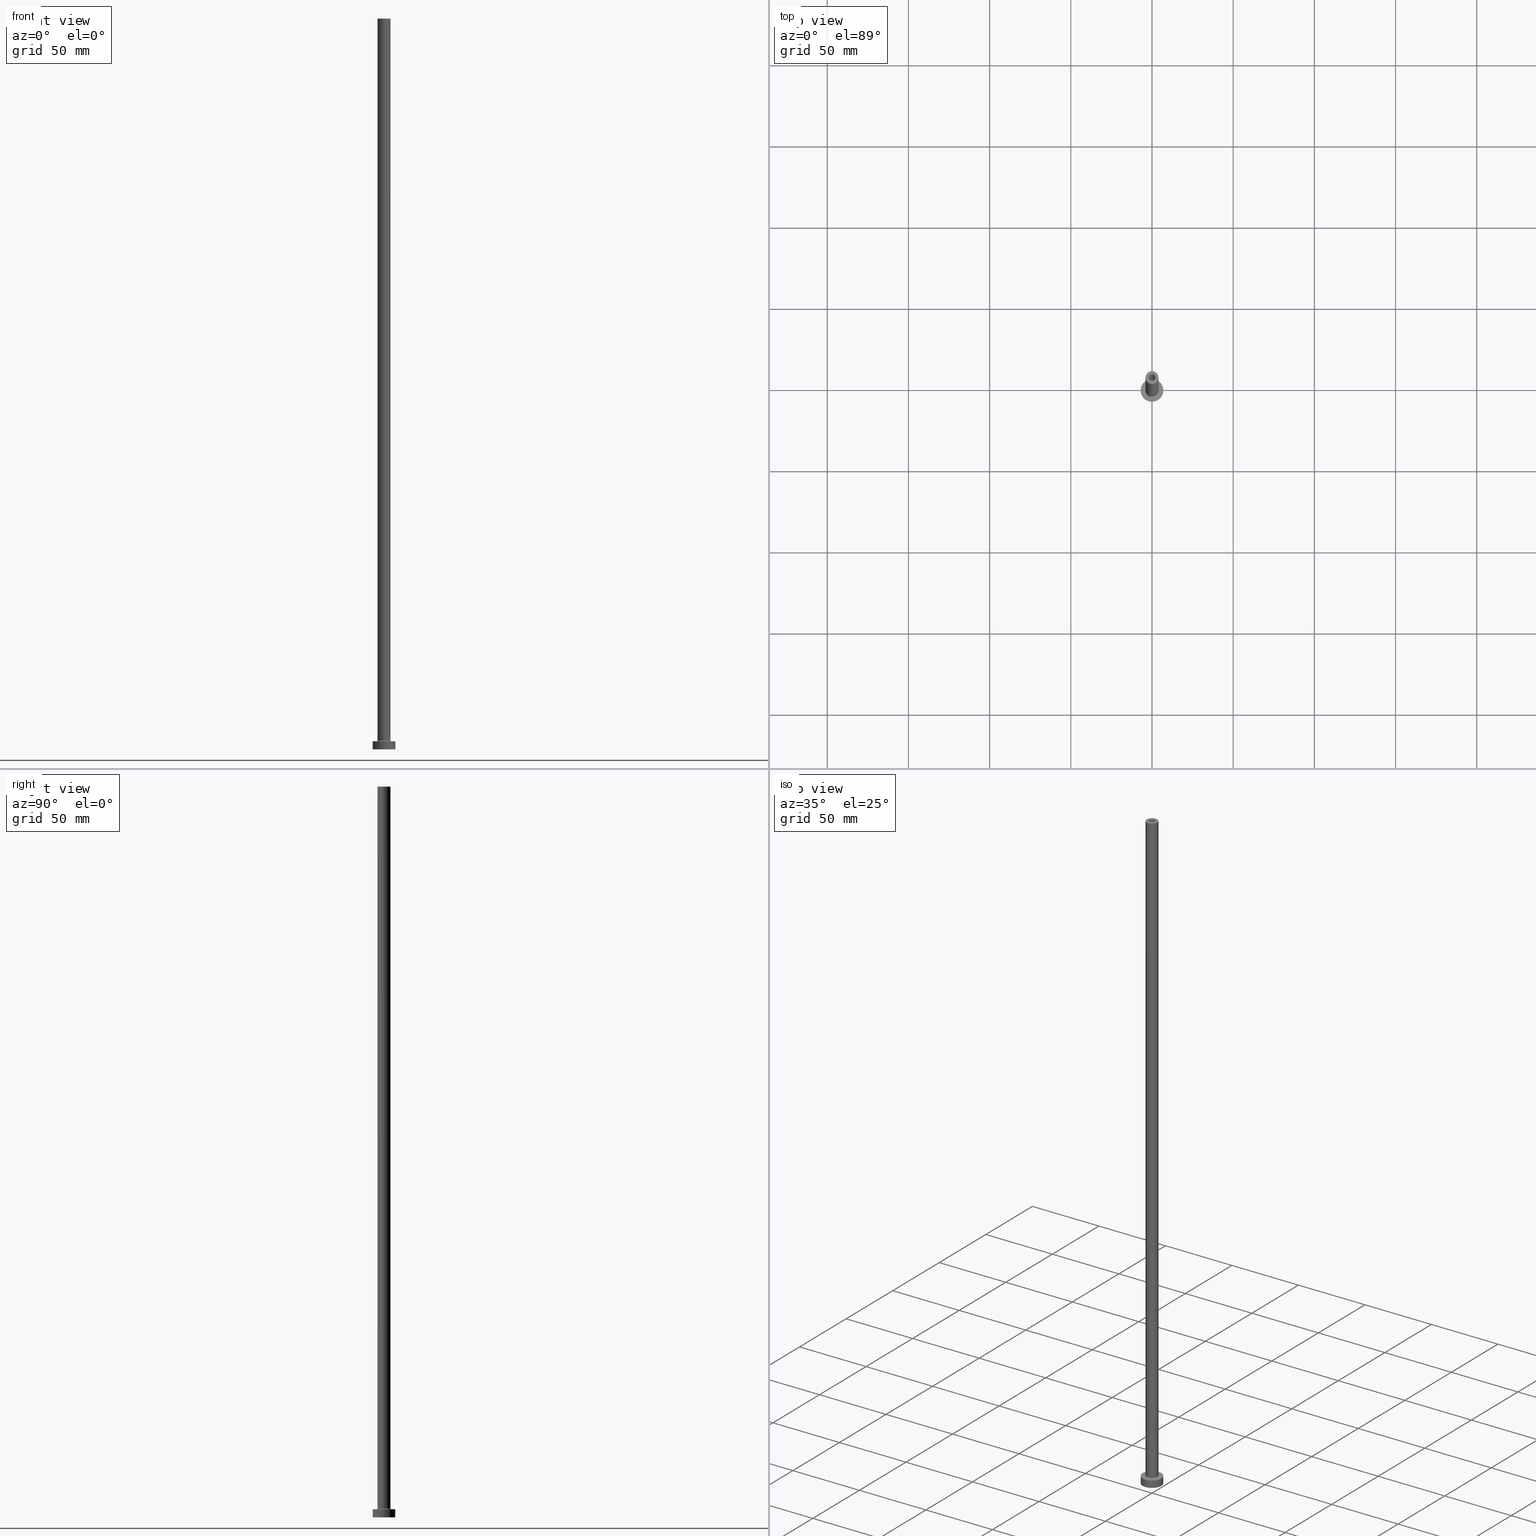
[diagram: canonical four-view strip — front | top / right | iso, engineering-drawing reading convention]
A machine part, canonical four-view strip (front | top / right | iso — engineering-drawing reading convention). The complete STEP part file that produces these views, byte-faithful:
ISO-10303-21;
HEADER;
FILE_DESCRIPTION (( 'STEP AP203' ),
    '1' );
FILE_NAME ('b4f0.STEP',
    '2023-02-13T17:37:16',
    ( '' ),
    ( '' ),
    'SwSTEP 2.0',
    'SolidWorks 2019',
    '' );
FILE_SCHEMA (( 'CONFIG_CONTROL_DESIGN' ));
ENDSEC;

DATA;
#1 = FACE_OUTER_BOUND ( 'NONE', #162, .T. ) ;
#2 = ORIENTED_EDGE ( 'NONE', *, *, #439, .T. ) ;
#3 = DIRECTION ( 'NONE',  ( 1.000000000000000000, 0.000000000000000000, -0.000000000000000000 ) ) ;
#4 = EDGE_LOOP ( 'NONE', ( #19, #74, #129, #197 ) ) ;
#5 = CC_DESIGN_PERSON_AND_ORGANIZATION_ASSIGNMENT ( #249, #31, ( #30 ) ) ;
#6 = CARTESIAN_POINT ( 'NONE',  ( 0.000000000000000000, 0.000000000000000000, 405.0000000000000000 ) ) ;
#7 = ORIENTED_EDGE ( 'NONE', *, *, #239, .T. ) ;
#8 = EDGE_CURVE ( 'NONE', #317, #195, #57, .T. ) ;
#9 = CYLINDRICAL_SURFACE ( 'NONE', #130, 7.000000000000000000 ) ;
#10 = ORIENTED_EDGE ( 'NONE', *, *, #310, .T. ) ;
#11 = APPLICATION_PROTOCOL_DEFINITION ( 'international standard', 'config_control_design', 1994, #156 ) ;
#12 = DIRECTION ( 'NONE',  ( -1.000000000000000000, 0.000000000000000000, 0.000000000000000000 ) ) ;
#13 = PERSON_AND_ORGANIZATION ( #289, #243 ) ;
#14 = EDGE_LOOP ( 'NONE', ( #448, #372, #41, #296 ) ) ;
#15 = VECTOR ( 'NONE', #349, 1000.000000000000000 ) ;
#16 = APPLICATION_PROTOCOL_DEFINITION ( 'international standard', 'config_control_design', 1994, #259 ) ;
#17 = DIRECTION ( 'NONE',  ( 0.000000000000000000, 0.000000000000000000, 1.000000000000000000 ) ) ;
#18 = CARTESIAN_POINT ( 'NONE',  ( 0.000000000000000000, 0.000000000000000000, 450.0000000000000000 ) ) ;
#19 = ORIENTED_EDGE ( 'NONE', *, *, #44, .F. ) ;
#20 = CYLINDRICAL_SURFACE ( 'NONE', #382, 4.000000000000000000 ) ;
#21 = VECTOR ( 'NONE', #135, 1000.000000000000000 ) ;
#22 = EDGE_CURVE ( 'NONE', #83, #406, #255, .T. ) ;
#23 = FACE_OUTER_BOUND ( 'NONE', #153, .T. ) ;
#24 = CIRCLE ( 'NONE', #169, 4.000000000000000000 ) ;
#25 = CALENDAR_DATE ( 2023, 13, 2 ) ;
#26 = CARTESIAN_POINT ( 'NONE',  ( -4.500000000000000888, 5.510910596163088569E-16, 5.000000000000002665 ) ) ;
#27 = FACE_OUTER_BOUND ( 'NONE', #159, .T. ) ;
#28 = ADVANCED_FACE ( 'NONE', ( #131 ), #20, .T. ) ;
#29 = CIRCLE ( 'NONE', #103, 4.000000000000000000 ) ;
#30 = PRODUCT_DEFINITION_FORMATION_WITH_SPECIFIED_SOURCE ( 'LIBOVOLN�', '', #313, .NOT_KNOWN. ) ;
#31 = PERSON_AND_ORGANIZATION_ROLE ( 'creator' ) ;
#32 = CYLINDRICAL_SURFACE ( 'NONE', #237, 2.149999999999999911 ) ;
#33 = AXIS2_PLACEMENT_3D ( 'NONE', #244, #381, #143 ) ;
#34 = CARTESIAN_POINT ( 'NONE',  ( 0.000000000000000000, 0.000000000000000000, 450.0000000000000000 ) ) ;
#35 = CARTESIAN_POINT ( 'NONE',  ( -2.000000000000000000, 0.000000000000000000, 450.0000000000000000 ) ) ;
#36 = ORIENTED_EDGE ( 'NONE', *, *, #297, .T. ) ;
#37 = EDGE_CURVE ( 'NONE', #240, #195, #275, .T. ) ;
#38 = CARTESIAN_POINT ( 'NONE',  ( 0.000000000000000000, 0.000000000000000000, 450.0000000000000000 ) ) ;
#39 = ORIENTED_EDGE ( 'NONE', *, *, #283, .F. ) ;
#40 = DIRECTION ( 'NONE',  ( 0.000000000000000000, 0.000000000000000000, 1.000000000000000000 ) ) ;
#41 = ORIENTED_EDGE ( 'NONE', *, *, #75, .T. ) ;
#42 = LINE ( 'NONE', #78, #302 ) ;
#43 = ORIENTED_EDGE ( 'NONE', *, *, #439, .F. ) ;
#44 = EDGE_CURVE ( 'NONE', #200, #442, #24, .T. ) ;
#45 = CARTESIAN_POINT ( 'NONE',  ( -4.500000000000000888, 5.510910596163089556E-16, 5.500000000000005329 ) ) ;
#46 = ORIENTED_EDGE ( 'NONE', *, *, #191, .T. ) ;
#47 = MECHANICAL_CONTEXT ( 'NONE', #156, 'mechanical' ) ;
#48 = ORIENTED_EDGE ( 'NONE', *, *, #452, .T. ) ;
#49 = TOROIDAL_SURFACE ( 'NONE', #94, 4.500000000000000888, 0.5000000000000000000 ) ;
#50 = DIRECTION ( 'NONE',  ( -0.000000000000000000, -0.000000000000000000, -1.000000000000000000 ) ) ;
#51 = CARTESIAN_POINT ( 'NONE',  ( 0.000000000000000000, 0.000000000000000000, 0.000000000000000000 ) ) ;
#52 = PERSON_AND_ORGANIZATION ( #289, #243 ) ;
#53 = DIRECTION ( 'NONE',  ( 0.000000000000000000, 0.000000000000000000, -1.000000000000000000 ) ) ;
#54 = TOROIDAL_SURFACE ( 'NONE', #294, 4.500000000000000888, 0.5000000000000000000 ) ;
#55 = PERSON_AND_ORGANIZATION ( #289, #243 ) ;
#56 = ORIENTED_EDGE ( 'NONE', *, *, #396, .T. ) ;
#57 = CIRCLE ( 'NONE', #218, 2.149999999999999911 ) ;
#58 = DIRECTION ( 'NONE',  ( 1.000000000000000000, 0.000000000000000000, 0.000000000000000000 ) ) ;
#59 = ORIENTED_EDGE ( 'NONE', *, *, #8, .F. ) ;
#60 = ADVANCED_FACE ( 'NONE', ( #238, #165 ), #206, .F. ) ;
#61 = DIRECTION ( 'NONE',  ( 1.000000000000000000, 0.000000000000000000, 0.000000000000000000 ) ) ;
#62 = CIRCLE ( 'NONE', #252, 2.149999999999999911 ) ;
#63 = PERSON_AND_ORGANIZATION ( #289, #243 ) ;
#64 = ADVANCED_FACE ( 'NONE', ( #447 ), #415, .T. ) ;
#65 = CARTESIAN_POINT ( 'NONE',  ( 2.000000000000000000, 2.449293598294705921E-16, 450.0000000000000000 ) ) ;
#66 = PERSON_AND_ORGANIZATION ( #289, #243 ) ;
#67 = EDGE_CURVE ( 'NONE', #442, #440, #180, .T. ) ;
#68 = PLANE ( 'NONE',  #386 ) ;
#69 = EDGE_CURVE ( 'NONE', #434, #272, #427, .T. ) ;
#70 = CARTESIAN_POINT ( 'NONE',  ( -4.000000000000000000, 0.000000000000000000, 450.0000000000000000 ) ) ;
#71 = CC_DESIGN_APPROVAL ( #229, ( #348 ) ) ;
#72 = CARTESIAN_POINT ( 'NONE',  ( 0.000000000000000000, 0.000000000000000000, 450.0000000000000000 ) ) ;
#73 = CARTESIAN_POINT ( 'NONE',  ( 2.000000000000000000, 2.449293598294705921E-16, 405.0000000000000000 ) ) ;
#74 = ORIENTED_EDGE ( 'NONE', *, *, #198, .T. ) ;
#75 = EDGE_CURVE ( 'NONE', #234, #232, #199, .T. ) ;
#76 = CARTESIAN_POINT ( 'NONE',  ( 0.000000000000000000, 0.000000000000000000, 5.500000000000005329 ) ) ;
#77 = ORIENTED_EDGE ( 'NONE', *, *, #161, .T. ) ;
#78 = CARTESIAN_POINT ( 'NONE',  ( -7.000000000000000000, 0.000000000000000000, 5.000000000000000000 ) ) ;
#79 = DIRECTION ( 'NONE',  ( 0.000000000000000000, 0.000000000000000000, 1.000000000000000000 ) ) ;
#80 = ADVANCED_FACE ( 'NONE', ( #27 ), #32, .F. ) ;
#81 = ORIENTED_EDGE ( 'NONE', *, *, #339, .T. ) ;
#82 = DIRECTION ( 'NONE',  ( 1.000000000000000000, 0.000000000000000000, -0.000000000000000000 ) ) ;
#83 = VERTEX_POINT ( 'NONE', #325 ) ;
#84 =( NAMED_UNIT ( * ) PLANE_ANGLE_UNIT ( ) SI_UNIT ( $, .RADIAN. ) );
#85 = DIRECTION ( 'NONE',  ( 1.000000000000000000, 0.000000000000000000, 0.000000000000000000 ) ) ;
#86 = CC_DESIGN_APPROVAL ( #170, ( #181 ) ) ;
#87 = APPROVAL_ROLE ( '' ) ;
#88 = EDGE_LOOP ( 'NONE', ( #281, #346 ) ) ;
#89 = ADVANCED_FACE ( 'NONE', ( #111 ), #49, .F. ) ;
#90 = APPROVAL_STATUS ( 'not_yet_approved' ) ;
#91 = ORIENTED_EDGE ( 'NONE', *, *, #22, .F. ) ;
#92 = COORDINATED_UNIVERSAL_TIME_OFFSET ( 1, 0, .AHEAD. ) ;
#93 = CARTESIAN_POINT ( 'NONE',  ( 0.000000000000000000, 0.000000000000000000, 450.0000000000000000 ) ) ;
#94 = AXIS2_PLACEMENT_3D ( 'NONE', #142, #322, #217 ) ;
#95 = AXIS2_PLACEMENT_3D ( 'NONE', #148, #397, #428 ) ;
#96 = DIRECTION ( 'NONE',  ( 0.000000000000000000, 0.000000000000000000, 1.000000000000000000 ) ) ;
#97 = ORIENTED_EDGE ( 'NONE', *, *, #115, .F. ) ;
#98 = ADVANCED_FACE ( 'NONE', ( #23 ), #459, .F. ) ;
#99 = COORDINATED_UNIVERSAL_TIME_OFFSET ( 1, 0, .AHEAD. ) ;
#100 = CARTESIAN_POINT ( 'NONE',  ( 0.000000000000000000, 0.000000000000000000, 450.0000000000000000 ) ) ;
#101 = CARTESIAN_POINT ( 'NONE',  ( 4.500000000000000888, 0.000000000000000000, 5.500000000000005329 ) ) ;
#102 = CIRCLE ( 'NONE', #127, 2.000000000000000000 ) ;
#103 = AXIS2_PLACEMENT_3D ( 'NONE', #34, #139, #185 ) ;
#104 = CC_DESIGN_SECURITY_CLASSIFICATION ( #348, ( #30 ) ) ;
#105 = EDGE_CURVE ( 'NONE', #195, #317, #140, .T. ) ;
#106 = APPROVAL_ROLE ( '' ) ;
#107 = CARTESIAN_POINT ( 'NONE',  ( 4.000000000000000000, 4.898587196589412829E-16, 450.0000000000000000 ) ) ;
#108 = SECURITY_CLASSIFICATION_LEVEL ( 'unclassified' ) ;
#109 = CARTESIAN_POINT ( 'NONE',  ( 0.000000000000000000, 0.000000000000000000, 0.000000000000000000 ) ) ;
#110 = DATE_AND_TIME ( #455, #214 ) ;
#111 = FACE_OUTER_BOUND ( 'NONE', #14, .T. ) ;
#112 = AXIS2_PLACEMENT_3D ( 'NONE', #72, #451, #319 ) ;
#113 = FACE_BOUND ( 'NONE', #333, .T. ) ;
#114 = CC_DESIGN_DATE_AND_TIME_ASSIGNMENT ( #446, #311, ( #181 ) ) ;
#115 = EDGE_CURVE ( 'NONE', #334, #272, #347, .T. ) ;
#116 = FACE_OUTER_BOUND ( 'NONE', #450, .T. ) ;
#117 = VERTEX_POINT ( 'NONE', #26 ) ;
#118 = CARTESIAN_POINT ( 'NONE',  ( -2.000000000000000000, 0.000000000000000000, 405.0000000000000000 ) ) ;
#119 = EDGE_LOOP ( 'NONE', ( #417, #384 ) ) ;
#120 = CIRCLE ( 'NONE', #378, 2.149999999999999911 ) ;
#121 = DIRECTION ( 'NONE',  ( 1.000000000000000000, 0.000000000000000000, 0.000000000000000000 ) ) ;
#122 = CYLINDRICAL_SURFACE ( 'NONE', #147, 2.000000000000000000 ) ;
#123 = ORIENTED_EDGE ( 'NONE', *, *, #67, .T. ) ;
#124 = CC_DESIGN_PERSON_AND_ORGANIZATION_ASSIGNMENT ( #320, #179, ( #30 ) ) ;
#125 = ORIENTED_EDGE ( 'NONE', *, *, #8, .T. ) ;
#126 = CARTESIAN_POINT ( 'NONE',  ( 0.000000000000000000, 0.000000000000000000, 5.000000000000000000 ) ) ;
#127 = AXIS2_PLACEMENT_3D ( 'NONE', #100, #287, #61 ) ;
#128 = CC_DESIGN_DATE_AND_TIME_ASSIGNMENT ( #110, #173, ( #348 ) ) ;
#129 = ORIENTED_EDGE ( 'NONE', *, *, #257, .T. ) ;
#130 = AXIS2_PLACEMENT_3D ( 'NONE', #132, #50, #273 ) ;
#131 = FACE_OUTER_BOUND ( 'NONE', #149, .T. ) ;
#132 = CARTESIAN_POINT ( 'NONE',  ( 0.000000000000000000, 0.000000000000000000, 5.000000000000000000 ) ) ;
#133 = DIRECTION ( 'NONE',  ( 1.000000000000000000, 0.000000000000000000, 0.000000000000000000 ) ) ;
#134 = EDGE_CURVE ( 'NONE', #304, #434, #146, .T. ) ;
#135 = DIRECTION ( 'NONE',  ( -0.000000000000000000, -0.000000000000000000, -1.000000000000000000 ) ) ;
#136 = ORIENTED_EDGE ( 'NONE', *, *, #105, .F. ) ;
#137 = DIRECTION ( 'NONE',  ( -0.000000000000000000, -0.000000000000000000, -1.000000000000000000 ) ) ;
#138 = CARTESIAN_POINT ( 'NONE',  ( -2.000000000000000000, 0.000000000000000000, 450.0000000000000000 ) ) ;
#139 = DIRECTION ( 'NONE',  ( 0.000000000000000000, 0.000000000000000000, 1.000000000000000000 ) ) ;
#140 = CIRCLE ( 'NONE', #241, 2.149999999999999911 ) ;
#141 = CALENDAR_DATE ( 2023, 13, 2 ) ;
#142 = CARTESIAN_POINT ( 'NONE',  ( 0.000000000000000000, 0.000000000000000000, 5.500000000000005329 ) ) ;
#143 = DIRECTION ( 'NONE',  ( -1.000000000000000000, 0.000000000000000000, 0.000000000000000000 ) ) ;
#144 = EDGE_CURVE ( 'NONE', #232, #117, #370, .T. ) ;
#145 = CARTESIAN_POINT ( 'NONE',  ( -2.149999999999999911, 0.000000000000000000, 405.0000000000000000 ) ) ;
#146 = CIRCLE ( 'NONE', #112, 2.000000000000000000 ) ;
#147 = AXIS2_PLACEMENT_3D ( 'NONE', #187, #404, #269 ) ;
#148 = CARTESIAN_POINT ( 'NONE',  ( 0.000000000000000000, 0.000000000000000000, 5.000000000000000000 ) ) ;
#149 = EDGE_LOOP ( 'NONE', ( #209, #277, #123, #157 ) ) ;
#150 = DIRECTION ( 'NONE',  ( 1.000000000000000000, 0.000000000000000000, 0.000000000000000000 ) ) ;
#151 = EDGE_LOOP ( 'NONE', ( #300, #81, #403, #395 ) ) ;
#152 = CARTESIAN_POINT ( 'NONE',  ( -7.000000000000000000, 0.000000000000000000, 5.000000000000000000 ) ) ;
#153 = EDGE_LOOP ( 'NONE', ( #274, #10, #364, #125 ) ) ;
#154 = VECTOR ( 'NONE', #332, 1000.000000000000000 ) ;
#155 = PLANE ( 'NONE',  #189 ) ;
#156 = APPLICATION_CONTEXT ( 'configuration controlled 3d designs of mechanical parts and assemblies' ) ;
#157 = ORIENTED_EDGE ( 'NONE', *, *, #247, .T. ) ;
#158 =( NAMED_UNIT ( * ) SI_UNIT ( $, .STERADIAN. ) SOLID_ANGLE_UNIT ( ) );
#159 = EDGE_LOOP ( 'NONE', ( #358, #266, #168, #39 ) ) ;
#160 = FACE_OUTER_BOUND ( 'NONE', #361, .T. ) ;
#161 = EDGE_CURVE ( 'NONE', #442, #200, #29, .T. ) ;
#162 = EDGE_LOOP ( 'NONE', ( #315, #46, #174, #369 ) ) ;
#163 = PERSON_AND_ORGANIZATION_ROLE ( 'creator' ) ;
#164 = APPROVAL_PERSON_ORGANIZATION ( #55, #268, #106 ) ;
#165 = FACE_OUTER_BOUND ( 'NONE', #306, .T. ) ;
#166 = CIRCLE ( 'NONE', #288, 0.5000000000000004441 ) ;
#167 = CALENDAR_DATE ( 2023, 13, 2 ) ;
#168 = ORIENTED_EDGE ( 'NONE', *, *, #105, .T. ) ;
#169 = AXIS2_PLACEMENT_3D ( 'NONE', #278, #410, #202 ) ;
#170 = APPROVAL ( #90, 'NEUR�EN�' ) ;
#171 = CARTESIAN_POINT ( 'NONE',  ( -4.000000000000000000, 0.000000000000000000, 450.0000000000000000 ) ) ;
#172 = EDGE_LOOP ( 'NONE', ( #77, #338 ) ) ;
#173 = DATE_TIME_ROLE ( 'classification_date' ) ;
#174 = ORIENTED_EDGE ( 'NONE', *, *, #215, .T. ) ;
#175 = CC_DESIGN_PERSON_AND_ORGANIZATION_ASSIGNMENT ( #66, #256, ( #348 ) ) ;
#176 = DATE_AND_TIME ( #141, #454 ) ;
#177 = DIRECTION ( 'NONE',  ( 0.000000000000000000, 0.000000000000000000, 1.000000000000000000 ) ) ;
#178 = VECTOR ( 'NONE', #53, 1000.000000000000000 ) ;
#179 = PERSON_AND_ORGANIZATION_ROLE ( 'design_supplier' ) ;
#180 = LINE ( 'NONE', #70, #438 ) ;
#181 = PRODUCT_DEFINITION ( 'NEZN�M�', '', #30, #365 ) ;
#182 = DIRECTION ( 'NONE',  ( -1.000000000000000000, 0.000000000000000000, 0.000000000000000000 ) ) ;
#183 = AXIS2_PLACEMENT_3D ( 'NONE', #126, #383, #279 ) ;
#184 = CARTESIAN_POINT ( 'NONE',  ( 0.000000000000000000, 0.000000000000000000, 411.0811183182044033 ) ) ;
#185 = DIRECTION ( 'NONE',  ( 1.000000000000000000, 0.000000000000000000, 0.000000000000000000 ) ) ;
#186 = ADVANCED_BREP_SHAPE_REPRESENTATION ( 'b4f0', ( #248, #435 ), #280 ) ;
#187 = CARTESIAN_POINT ( 'NONE',  ( 0.000000000000000000, 0.000000000000000000, 450.0000000000000000 ) ) ;
#188 = EDGE_LOOP ( 'NONE', ( #43, #431, #56, #7 ) ) ;
#189 = AXIS2_PLACEMENT_3D ( 'NONE', #38, #196, #82 ) ;
#190 = DIRECTION ( 'NONE',  ( -0.000000000000000000, -0.000000000000000000, -1.000000000000000000 ) ) ;
#191 = EDGE_CURVE ( 'NONE', #434, #304, #102, .T. ) ;
#192 = ORIENTED_EDGE ( 'NONE', *, *, #144, .T. ) ;
#193 = DIRECTION ( 'NONE',  ( -1.000000000000000000, 1.224646799147351482E-16, 0.000000000000000000 ) ) ;
#194 = FACE_OUTER_BOUND ( 'NONE', #119, .T. ) ;
#195 = VERTEX_POINT ( 'NONE', #212 ) ;
#196 = DIRECTION ( 'NONE',  ( 0.000000000000000000, 0.000000000000000000, 1.000000000000000000 ) ) ;
#197 = ORIENTED_EDGE ( 'NONE', *, *, #67, .F. ) ;
#198 = EDGE_CURVE ( 'NONE', #200, #234, #424, .T. ) ;
#199 = CIRCLE ( 'NONE', #305, 0.5000000000000004441 ) ;
#200 = VERTEX_POINT ( 'NONE', #254 ) ;
#201 = CARTESIAN_POINT ( 'NONE',  ( 0.000000000000000000, 0.000000000000000000, 405.0000000000000000 ) ) ;
#202 = DIRECTION ( 'NONE',  ( 1.000000000000000000, 0.000000000000000000, 0.000000000000000000 ) ) ;
#203 = UNCERTAINTY_MEASURE_WITH_UNIT (LENGTH_MEASURE( 1.000000000000000082E-05 ), #414, 'distance_accuracy_value', 'NONE');
#204 = CIRCLE ( 'NONE', #267, 7.000000000000000000 ) ;
#205 = APPROVAL_PERSON_ORGANIZATION ( #444, #170, #87 ) ;
#206 = PLANE ( 'NONE',  #393 ) ;
#207 = ADVANCED_FACE ( 'NONE', ( #353, #388 ), #68, .T. ) ;
#208 = APPROVAL_STATUS ( 'not_yet_approved' ) ;
#209 = ORIENTED_EDGE ( 'NONE', *, *, #198, .F. ) ;
#210 = ORIENTED_EDGE ( 'NONE', *, *, #396, .F. ) ;
#211 = DATE_AND_TIME ( #25, #222 ) ;
#212 = CARTESIAN_POINT ( 'NONE',  ( 2.149999999999999911, 2.632990618166809235E-16, 0.000000000000000000 ) ) ;
#213 = CIRCLE ( 'NONE', #398, 4.000000000000000000 ) ;
#214 = LOCAL_TIME ( 18, 37, 16.00000000000000000, #253 ) ;
#215 = EDGE_CURVE ( 'NONE', #304, #334, #426, .T. ) ;
#216 = COORDINATED_UNIVERSAL_TIME_OFFSET ( 1, 0, .AHEAD. ) ;
#217 = DIRECTION ( 'NONE',  ( 1.000000000000000000, 0.000000000000000000, 0.000000000000000000 ) ) ;
#218 = AXIS2_PLACEMENT_3D ( 'NONE', #51, #137, #85 ) ;
#219 = CARTESIAN_POINT ( 'NONE',  ( 0.000000000000000000, 0.000000000000000000, 5.000000000000000000 ) ) ;
#220 = APPROVAL_STATUS ( 'not_yet_approved' ) ;
#221 = DIRECTION ( 'NONE',  ( 0.000000000000000000, 0.000000000000000000, -1.000000000000000000 ) ) ;
#222 = LOCAL_TIME ( 18, 37, 16.00000000000000000, #216 ) ;
#223 = DIRECTION ( 'NONE',  ( -1.000000000000000000, 0.000000000000000000, 0.000000000000000000 ) ) ;
#224 = DIRECTION ( 'NONE',  ( 1.000000000000000000, 0.000000000000000000, 0.000000000000000000 ) ) ;
#225 = EDGE_LOOP ( 'NONE', ( #263, #412 ) ) ;
#226 = FACE_OUTER_BOUND ( 'NONE', #172, .T. ) ;
#227 = ORIENTED_EDGE ( 'NONE', *, *, #297, .F. ) ;
#228 = APPROVAL_PERSON_ORGANIZATION ( #63, #229, #286 ) ;
#229 = APPROVAL ( #220, 'NEUR�EN�' ) ;
#230 = DIRECTION ( 'NONE',  ( 0.000000000000000000, 0.000000000000000000, 1.000000000000000000 ) ) ;
#231 = CARTESIAN_POINT ( 'NONE',  ( 0.000000000000000000, 0.000000000000000000, 5.500000000000005329 ) ) ;
#232 = VERTEX_POINT ( 'NONE', #285 ) ;
#233 = DIRECTION ( 'NONE',  ( 0.000000000000000000, 0.000000000000000000, 1.000000000000000000 ) ) ;
#234 = VERTEX_POINT ( 'NONE', #419 ) ;
#235 = CARTESIAN_POINT ( 'NONE',  ( 0.000000000000000000, 0.000000000000000000, 5.000000000000000000 ) ) ;
#236 = DATE_AND_TIME ( #242, #379 ) ;
#237 = AXIS2_PLACEMENT_3D ( 'NONE', #456, #292, #182 ) ;
#238 = FACE_BOUND ( 'NONE', #336, .T. ) ;
#239 = EDGE_CURVE ( 'NONE', #375, #270, #251, .T. ) ;
#240 = VERTEX_POINT ( 'NONE', #394 ) ;
#241 = AXIS2_PLACEMENT_3D ( 'NONE', #323, #385, #246 ) ;
#242 = CALENDAR_DATE ( 2023, 13, 2 ) ;
#243 = ORGANIZATION ( 'NEUR�EN�', 'NEUR�EN�', '' ) ;
#244 = CARTESIAN_POINT ( 'NONE',  ( 0.000000000000000000, 0.000000000000000000, 450.0000000000000000 ) ) ;
#245 = DIRECTION ( 'NONE',  ( 0.000000000000000000, 0.000000000000000000, 1.000000000000000000 ) ) ;
#246 = DIRECTION ( 'NONE',  ( 1.000000000000000000, 0.000000000000000000, 0.000000000000000000 ) ) ;
#247 = EDGE_CURVE ( 'NONE', #440, #234, #213, .T. ) ;
#248 = MANIFOLD_SOLID_BREP ( 'Odebrat vysunut�m4', #458 ) ;
#249 = PERSON_AND_ORGANIZATION ( #289, #243 ) ;
#250 = DIRECTION ( 'NONE',  ( 0.000000000000000000, 0.000000000000000000, -1.000000000000000000 ) ) ;
#251 = CIRCLE ( 'NONE', #362, 7.000000000000000000 ) ;
#252 = AXIS2_PLACEMENT_3D ( 'NONE', #6, #79, #261 ) ;
#253 = COORDINATED_UNIVERSAL_TIME_OFFSET ( 1, 0, .AHEAD. ) ;
#254 = CARTESIAN_POINT ( 'NONE',  ( 4.000000000000000000, 4.898587196589412829E-16, 450.0000000000000000 ) ) ;
#255 = CIRCLE ( 'NONE', #324, 7.000000000000000000 ) ;
#256 = PERSON_AND_ORGANIZATION_ROLE ( 'classification_officer' ) ;
#257 = EDGE_CURVE ( 'NONE', #234, #440, #301, .T. ) ;
#258 = DIRECTION ( 'NONE',  ( 0.000000000000000000, 0.000000000000000000, 1.000000000000000000 ) ) ;
#259 = APPLICATION_CONTEXT ( 'configuration controlled 3d designs of mechanical parts and assemblies' ) ;
#260 = DIRECTION ( 'NONE',  ( 0.000000000000000000, 0.000000000000000000, 1.000000000000000000 ) ) ;
#261 = DIRECTION ( 'NONE',  ( 1.000000000000000000, 0.000000000000000000, 0.000000000000000000 ) ) ;
#262 = DIRECTION ( 'NONE',  ( 1.224646799147353207E-16, 1.000000000000000000, -0.000000000000000000 ) ) ;
#263 = ORIENTED_EDGE ( 'NONE', *, *, #391, .T. ) ;
#264 = CC_DESIGN_PERSON_AND_ORGANIZATION_ASSIGNMENT ( #52, #337, ( #313 ) ) ;
#265 = FACE_BOUND ( 'NONE', #88, .T. ) ;
#266 = ORIENTED_EDGE ( 'NONE', *, *, #37, .T. ) ;
#267 = AXIS2_PLACEMENT_3D ( 'NONE', #357, #233, #150 ) ;
#268 = APPROVAL ( #208, 'NEUR�EN�' ) ;
#269 = DIRECTION ( 'NONE',  ( -1.000000000000000000, 0.000000000000000000, 0.000000000000000000 ) ) ;
#270 = VERTEX_POINT ( 'NONE', #401 ) ;
#271 = DIRECTION ( 'NONE',  ( 0.000000000000000000, 0.000000000000000000, 1.000000000000000000 ) ) ;
#272 = VERTEX_POINT ( 'NONE', #73 ) ;
#273 = DIRECTION ( 'NONE',  ( -1.000000000000000000, 0.000000000000000000, 0.000000000000000000 ) ) ;
#274 = ORIENTED_EDGE ( 'NONE', *, *, #37, .F. ) ;
#275 = LINE ( 'NONE', #377, #178 ) ;
#276 = COORDINATED_UNIVERSAL_TIME_OFFSET ( 1, 0, .AHEAD. ) ;
#277 = ORIENTED_EDGE ( 'NONE', *, *, #161, .F. ) ;
#278 = CARTESIAN_POINT ( 'NONE',  ( 0.000000000000000000, 0.000000000000000000, 450.0000000000000000 ) ) ;
#279 = DIRECTION ( 'NONE',  ( -1.000000000000000000, 0.000000000000000000, 0.000000000000000000 ) ) ;
#280 =( GEOMETRIC_REPRESENTATION_CONTEXT ( 3 ) GLOBAL_UNCERTAINTY_ASSIGNED_CONTEXT ( ( #203 ) ) GLOBAL_UNIT_ASSIGNED_CONTEXT ( ( #414, #84, #158 ) ) REPRESENTATION_CONTEXT ( 'NONE', 'WORKASPACE' ) );
#281 = ORIENTED_EDGE ( 'NONE', *, *, #134, .F. ) ;
#282 = DIRECTION ( 'NONE',  ( 1.000000000000000000, 0.000000000000000000, 0.000000000000000000 ) ) ;
#283 = EDGE_CURVE ( 'NONE', #345, #317, #335, .T. ) ;
#284 = APPROVAL_DATE_TIME ( #211, #268 ) ;
#285 = CARTESIAN_POINT ( 'NONE',  ( 4.500000000000000888, 0.000000000000000000, 5.000000000000002665 ) ) ;
#286 = APPROVAL_ROLE ( '' ) ;
#287 = DIRECTION ( 'NONE',  ( 0.000000000000000000, 0.000000000000000000, 1.000000000000000000 ) ) ;
#288 = AXIS2_PLACEMENT_3D ( 'NONE', #45, #262, #193 ) ;
#289 = PERSON ( 'NEUR�EN�', 'NEUR�EN�', 'NEUR�EN�', ('NEUR�EN�'), ('NEUR�EN�'), ('NEUR�EN�') ) ;
#290 = EDGE_CURVE ( 'NONE', #117, #232, #449, .T. ) ;
#291 = DIRECTION ( 'NONE',  ( 0.000000000000000000, 0.000000000000000000, -1.000000000000000000 ) ) ;
#292 = DIRECTION ( 'NONE',  ( 0.000000000000000000, 0.000000000000000000, -1.000000000000000000 ) ) ;
#293 = CARTESIAN_POINT ( 'NONE',  ( -7.000000000000000000, 0.000000000000000000, 0.000000000000000000 ) ) ;
#294 = AXIS2_PLACEMENT_3D ( 'NONE', #368, #298, #432 ) ;
#295 = CARTESIAN_POINT ( 'NONE',  ( 0.000000000000000000, 0.000000000000000000, 405.0000000000000000 ) ) ;
#296 = ORIENTED_EDGE ( 'NONE', *, *, #290, .F. ) ;
#297 = EDGE_CURVE ( 'NONE', #270, #375, #204, .T. ) ;
#298 = DIRECTION ( 'NONE',  ( 0.000000000000000000, 0.000000000000000000, 1.000000000000000000 ) ) ;
#299 = CARTESIAN_POINT ( 'NONE',  ( -2.149999999999999911, 0.000000000000000000, 411.0811183182044033 ) ) ;
#300 = ORIENTED_EDGE ( 'NONE', *, *, #247, .F. ) ;
#301 = CIRCLE ( 'NONE', #360, 4.000000000000000000 ) ;
#302 = VECTOR ( 'NONE', #190, 1000.000000000000000 ) ;
#303 = CARTESIAN_POINT ( 'NONE',  ( 0.000000000000000000, 0.000000000000000000, 405.0000000000000000 ) ) ;
#304 = VERTEX_POINT ( 'NONE', #35 ) ;
#305 = AXIS2_PLACEMENT_3D ( 'NONE', #101, #387, #221 ) ;
#306 = EDGE_LOOP ( 'NONE', ( #331, #227 ) ) ;
#307 = CARTESIAN_POINT ( 'NONE',  ( 2.000000000000000000, 2.449293598294705921E-16, 450.0000000000000000 ) ) ;
#308 = ORIENTED_EDGE ( 'NONE', *, *, #69, .T. ) ;
#309 = ORIENTED_EDGE ( 'NONE', *, *, #134, .T. ) ;
#310 = EDGE_CURVE ( 'NONE', #240, #345, #120, .T. ) ;
#311 = DATE_TIME_ROLE ( 'creation_date' ) ;
#312 = DIRECTION ( 'NONE',  ( 1.000000000000000000, 0.000000000000000000, -0.000000000000000000 ) ) ;
#313 = PRODUCT ( 'b4f0', 'b4f0', '', ( #47 ) ) ;
#314 = DIRECTION ( 'NONE',  ( -1.000000000000000000, 0.000000000000000000, 0.000000000000000000 ) ) ;
#315 = ORIENTED_EDGE ( 'NONE', *, *, #69, .F. ) ;
#316 = ADVANCED_FACE ( 'NONE', ( #1 ), #122, .F. ) ;
#317 = VERTEX_POINT ( 'NONE', #327 ) ;
#318 = DIRECTION ( 'NONE',  ( 1.000000000000000000, 0.000000000000000000, -0.000000000000000000 ) ) ;
#319 = DIRECTION ( 'NONE',  ( 1.000000000000000000, 0.000000000000000000, 0.000000000000000000 ) ) ;
#320 = PERSON_AND_ORGANIZATION ( #289, #243 ) ;
#321 = AXIS2_PLACEMENT_3D ( 'NONE', #457, #260, #418 ) ;
#322 = DIRECTION ( 'NONE',  ( 0.000000000000000000, 0.000000000000000000, 1.000000000000000000 ) ) ;
#323 = CARTESIAN_POINT ( 'NONE',  ( 0.000000000000000000, 0.000000000000000000, 0.000000000000000000 ) ) ;
#324 = AXIS2_PLACEMENT_3D ( 'NONE', #235, #245, #133 ) ;
#325 = CARTESIAN_POINT ( 'NONE',  ( 7.000000000000000000, 8.572527594031473190E-16, 5.000000000000000000 ) ) ;
#326 = ADVANCED_FACE ( 'NONE', ( #460 ), #54, .F. ) ;
#327 = CARTESIAN_POINT ( 'NONE',  ( -2.149999999999999911, 0.000000000000000000, 0.000000000000000000 ) ) ;
#328 = AXIS2_PLACEMENT_3D ( 'NONE', #184, #291, #223 ) ;
#329 = AXIS2_PLACEMENT_3D ( 'NONE', #295, #430, #3 ) ;
#330 = DIRECTION ( 'NONE',  ( 1.000000000000000000, 0.000000000000000000, 0.000000000000000000 ) ) ;
#331 = ORIENTED_EDGE ( 'NONE', *, *, #239, .F. ) ;
#332 = DIRECTION ( 'NONE',  ( 0.000000000000000000, 0.000000000000000000, -1.000000000000000000 ) ) ;
#333 = EDGE_LOOP ( 'NONE', ( #399, #48 ) ) ;
#334 = VERTEX_POINT ( 'NONE', #118 ) ;
#335 = LINE ( 'NONE', #299, #154 ) ;
#336 = EDGE_LOOP ( 'NONE', ( #59, #136 ) ) ;
#337 = PERSON_AND_ORGANIZATION_ROLE ( 'design_owner' ) ;
#338 = ORIENTED_EDGE ( 'NONE', *, *, #44, .T. ) ;
#339 = EDGE_CURVE ( 'NONE', #440, #117, #166, .T. ) ;
#340 = ORIENTED_EDGE ( 'NONE', *, *, #215, .F. ) ;
#341 = VECTOR ( 'NONE', #250, 1000.000000000000000 ) ;
#342 = CARTESIAN_POINT ( 'NONE',  ( 0.000000000000000000, 0.000000000000000000, 0.000000000000000000 ) ) ;
#343 = CARTESIAN_POINT ( 'NONE',  ( 0.000000000000000000, 0.000000000000000000, 0.000000000000000000 ) ) ;
#344 = CARTESIAN_POINT ( 'NONE',  ( 7.000000000000000000, 8.572527594031473190E-16, 5.000000000000000000 ) ) ;
#345 = VERTEX_POINT ( 'NONE', #145 ) ;
#346 = ORIENTED_EDGE ( 'NONE', *, *, #191, .F. ) ;
#347 = CIRCLE ( 'NONE', #321, 2.000000000000000000 ) ;
#348 = SECURITY_CLASSIFICATION ( '', '', #108 ) ;
#349 = DIRECTION ( 'NONE',  ( -0.000000000000000000, -0.000000000000000000, -1.000000000000000000 ) ) ;
#350 = SHAPE_DEFINITION_REPRESENTATION ( #425, #186 ) ;
#351 = CC_DESIGN_PERSON_AND_ORGANIZATION_ASSIGNMENT ( #13, #163, ( #181 ) ) ;
#352 = DIRECTION ( 'NONE',  ( 0.000000000000000000, 0.000000000000000000, -1.000000000000000000 ) ) ;
#353 = FACE_BOUND ( 'NONE', #367, .T. ) ;
#354 = DIRECTION ( 'NONE',  ( -0.000000000000000000, -0.000000000000000000, -1.000000000000000000 ) ) ;
#355 = VECTOR ( 'NONE', #352, 1000.000000000000000 ) ;
#356 = EDGE_CURVE ( 'NONE', #345, #240, #62, .T. ) ;
#357 = CARTESIAN_POINT ( 'NONE',  ( 0.000000000000000000, 0.000000000000000000, 0.000000000000000000 ) ) ;
#358 = ORIENTED_EDGE ( 'NONE', *, *, #356, .T. ) ;
#359 = DIRECTION ( 'NONE',  ( -0.000000000000000000, -0.000000000000000000, -1.000000000000000000 ) ) ;
#360 = AXIS2_PLACEMENT_3D ( 'NONE', #76, #271, #121 ) ;
#361 = EDGE_LOOP ( 'NONE', ( #91, #2, #36, #210 ) ) ;
#362 = AXIS2_PLACEMENT_3D ( 'NONE', #109, #258, #436 ) ;
#363 = CARTESIAN_POINT ( 'NONE',  ( 0.000000000000000000, 0.000000000000000000, 5.000000000000000000 ) ) ;
#364 = ORIENTED_EDGE ( 'NONE', *, *, #283, .T. ) ;
#365 = DESIGN_CONTEXT ( 'detailed design', #259, 'design' ) ;
#366 = DIRECTION ( 'NONE',  ( 1.000000000000000000, 0.000000000000000000, 0.000000000000000000 ) ) ;
#367 = EDGE_LOOP ( 'NONE', ( #192, #437 ) ) ;
#368 = CARTESIAN_POINT ( 'NONE',  ( 0.000000000000000000, 0.000000000000000000, 5.500000000000005329 ) ) ;
#369 = ORIENTED_EDGE ( 'NONE', *, *, #452, .F. ) ;
#370 = CIRCLE ( 'NONE', #407, 4.500000000000000888 ) ;
#371 = DIRECTION ( 'NONE',  ( 0.000000000000000000, 0.000000000000000000, 1.000000000000000000 ) ) ;
#372 = ORIENTED_EDGE ( 'NONE', *, *, #257, .F. ) ;
#373 = ADVANCED_FACE ( 'NONE', ( #265, #226 ), #155, .T. ) ;
#374 = DIRECTION ( 'NONE',  ( 0.000000000000000000, 0.000000000000000000, -1.000000000000000000 ) ) ;
#375 = VERTEX_POINT ( 'NONE', #293 ) ;
#376 = CARTESIAN_POINT ( 'NONE',  ( -4.000000000000000000, 0.000000000000000000, 5.500000000000005329 ) ) ;
#377 = CARTESIAN_POINT ( 'NONE',  ( 2.149999999999999911, 2.632990618166809235E-16, 411.0811183182044033 ) ) ;
#378 = AXIS2_PLACEMENT_3D ( 'NONE', #303, #40, #366 ) ;
#379 = LOCAL_TIME ( 18, 37, 16.00000000000000000, #92 ) ;
#380 = APPROVAL_DATE_TIME ( #236, #170 ) ;
#381 = DIRECTION ( 'NONE',  ( -0.000000000000000000, -0.000000000000000000, -1.000000000000000000 ) ) ;
#382 = AXIS2_PLACEMENT_3D ( 'NONE', #93, #445, #12 ) ;
#383 = DIRECTION ( 'NONE',  ( -0.000000000000000000, -0.000000000000000000, -1.000000000000000000 ) ) ;
#384 = ORIENTED_EDGE ( 'NONE', *, *, #310, .F. ) ;
#385 = DIRECTION ( 'NONE',  ( -0.000000000000000000, -0.000000000000000000, -1.000000000000000000 ) ) ;
#386 = AXIS2_PLACEMENT_3D ( 'NONE', #219, #177, #318 ) ;
#387 = DIRECTION ( 'NONE',  ( 0.000000000000000000, -1.000000000000000000, 0.000000000000000000 ) ) ;
#388 = FACE_OUTER_BOUND ( 'NONE', #225, .T. ) ;
#389 = APPROVAL_DATE_TIME ( #176, #229 ) ;
#390 = DIRECTION ( 'NONE',  ( -0.000000000000000000, -0.000000000000000000, -1.000000000000000000 ) ) ;
#391 = EDGE_CURVE ( 'NONE', #406, #83, #422, .T. ) ;
#392 = PLANE ( 'NONE',  #329 ) ;
#393 = AXIS2_PLACEMENT_3D ( 'NONE', #343, #17, #312 ) ;
#394 = CARTESIAN_POINT ( 'NONE',  ( 2.149999999999999911, 2.632990618166809235E-16, 405.0000000000000000 ) ) ;
#395 = ORIENTED_EDGE ( 'NONE', *, *, #75, .F. ) ;
#396 = EDGE_CURVE ( 'NONE', #406, #375, #42, .T. ) ;
#397 = DIRECTION ( 'NONE',  ( 0.000000000000000000, 0.000000000000000000, 1.000000000000000000 ) ) ;
#398 = AXIS2_PLACEMENT_3D ( 'NONE', #231, #230, #330 ) ;
#399 = ORIENTED_EDGE ( 'NONE', *, *, #115, .T. ) ;
#400 = PRODUCT_RELATED_PRODUCT_CATEGORY ( 'detail', '', ( #313 ) ) ;
#401 = CARTESIAN_POINT ( 'NONE',  ( 7.000000000000000000, 8.572527594031473190E-16, 0.000000000000000000 ) ) ;
#402 = ADVANCED_FACE ( 'NONE', ( #113, #194 ), #392, .F. ) ;
#403 = ORIENTED_EDGE ( 'NONE', *, *, #144, .F. ) ;
#404 = DIRECTION ( 'NONE',  ( 0.000000000000000000, 0.000000000000000000, -1.000000000000000000 ) ) ;
#405 = FACE_OUTER_BOUND ( 'NONE', #188, .T. ) ;
#406 = VERTEX_POINT ( 'NONE', #152 ) ;
#407 = AXIS2_PLACEMENT_3D ( 'NONE', #453, #354, #282 ) ;
#408 = ADVANCED_FACE ( 'NONE', ( #116 ), #433, .F. ) ;
#409 = AXIS2_PLACEMENT_3D ( 'NONE', #201, #96, #58 ) ;
#410 = DIRECTION ( 'NONE',  ( 0.000000000000000000, 0.000000000000000000, 1.000000000000000000 ) ) ;
#411 = DIRECTION ( 'NONE',  ( 1.000000000000000000, 0.000000000000000000, 0.000000000000000000 ) ) ;
#412 = ORIENTED_EDGE ( 'NONE', *, *, #22, .T. ) ;
#413 = ADVANCED_FACE ( 'NONE', ( #160 ), #9, .T. ) ;
#414 =( LENGTH_UNIT ( ) NAMED_UNIT ( * ) SI_UNIT ( .MILLI., .METRE. ) );
#415 = CYLINDRICAL_SURFACE ( 'NONE', #33, 4.000000000000000000 ) ;
#416 = LINE ( 'NONE', #344, #21 ) ;
#417 = ORIENTED_EDGE ( 'NONE', *, *, #356, .F. ) ;
#418 = DIRECTION ( 'NONE',  ( 1.000000000000000000, 0.000000000000000000, 0.000000000000000000 ) ) ;
#419 = CARTESIAN_POINT ( 'NONE',  ( 4.000000000000000000, 4.898587196589412829E-16, 5.500000000000005329 ) ) ;
#420 = ADVANCED_FACE ( 'NONE', ( #405 ), #441, .T. ) ;
#421 = AXIS2_PLACEMENT_3D ( 'NONE', #363, #359, #224 ) ;
#422 = CIRCLE ( 'NONE', #95, 7.000000000000000000 ) ;
#423 = AXIS2_PLACEMENT_3D ( 'NONE', #18, #374, #314 ) ;
#424 = LINE ( 'NONE', #107, #15 ) ;
#425 = PRODUCT_DEFINITION_SHAPE ( 'NONE', 'NONE',  #181 ) ;
#426 = LINE ( 'NONE', #138, #341 ) ;
#427 = LINE ( 'NONE', #65, #355 ) ;
#428 = DIRECTION ( 'NONE',  ( 1.000000000000000000, 0.000000000000000000, 0.000000000000000000 ) ) ;
#429 = CIRCLE ( 'NONE', #409, 2.000000000000000000 ) ;
#430 = DIRECTION ( 'NONE',  ( 0.000000000000000000, 0.000000000000000000, 1.000000000000000000 ) ) ;
#431 = ORIENTED_EDGE ( 'NONE', *, *, #391, .F. ) ;
#432 = DIRECTION ( 'NONE',  ( 1.000000000000000000, 0.000000000000000000, 0.000000000000000000 ) ) ;
#433 = CYLINDRICAL_SURFACE ( 'NONE', #423, 2.000000000000000000 ) ;
#434 = VERTEX_POINT ( 'NONE', #307 ) ;
#435 = AXIS2_PLACEMENT_3D ( 'NONE', #342, #371, #411 ) ;
#436 = DIRECTION ( 'NONE',  ( 1.000000000000000000, 0.000000000000000000, 0.000000000000000000 ) ) ;
#437 = ORIENTED_EDGE ( 'NONE', *, *, #290, .T. ) ;
#438 = VECTOR ( 'NONE', #390, 1000.000000000000000 ) ;
#439 = EDGE_CURVE ( 'NONE', #83, #270, #416, .T. ) ;
#440 = VERTEX_POINT ( 'NONE', #376 ) ;
#441 = CYLINDRICAL_SURFACE ( 'NONE', #183, 7.000000000000000000 ) ;
#442 = VERTEX_POINT ( 'NONE', #171 ) ;
#443 = LOCAL_TIME ( 18, 37, 16.00000000000000000, #276 ) ;
#444 = PERSON_AND_ORGANIZATION ( #289, #243 ) ;
#445 = DIRECTION ( 'NONE',  ( -0.000000000000000000, -0.000000000000000000, -1.000000000000000000 ) ) ;
#446 = DATE_AND_TIME ( #167, #443 ) ;
#447 = FACE_OUTER_BOUND ( 'NONE', #4, .T. ) ;
#448 = ORIENTED_EDGE ( 'NONE', *, *, #339, .F. ) ;
#449 = CIRCLE ( 'NONE', #421, 4.500000000000000888 ) ;
#450 = EDGE_LOOP ( 'NONE', ( #309, #308, #97, #340 ) ) ;
#451 = DIRECTION ( 'NONE',  ( 0.000000000000000000, 0.000000000000000000, 1.000000000000000000 ) ) ;
#452 = EDGE_CURVE ( 'NONE', #272, #334, #429, .T. ) ;
#453 = CARTESIAN_POINT ( 'NONE',  ( 0.000000000000000000, 0.000000000000000000, 5.000000000000000000 ) ) ;
#454 = LOCAL_TIME ( 18, 37, 16.00000000000000000, #99 ) ;
#455 = CALENDAR_DATE ( 2023, 13, 2 ) ;
#456 = CARTESIAN_POINT ( 'NONE',  ( 0.000000000000000000, 0.000000000000000000, 411.0811183182044033 ) ) ;
#457 = CARTESIAN_POINT ( 'NONE',  ( 0.000000000000000000, 0.000000000000000000, 405.0000000000000000 ) ) ;
#458 = CLOSED_SHELL ( 'NONE', ( #408, #80, #326, #64, #413, #420, #207, #60, #28, #373, #89, #98, #402, #316 ) ) ;
#459 = CYLINDRICAL_SURFACE ( 'NONE', #328, 2.149999999999999911 ) ;
#460 = FACE_OUTER_BOUND ( 'NONE', #151, .T. ) ;
#461 = CC_DESIGN_APPROVAL ( #268, ( #30 ) ) ;
ENDSEC;
END-ISO-10303-21;
